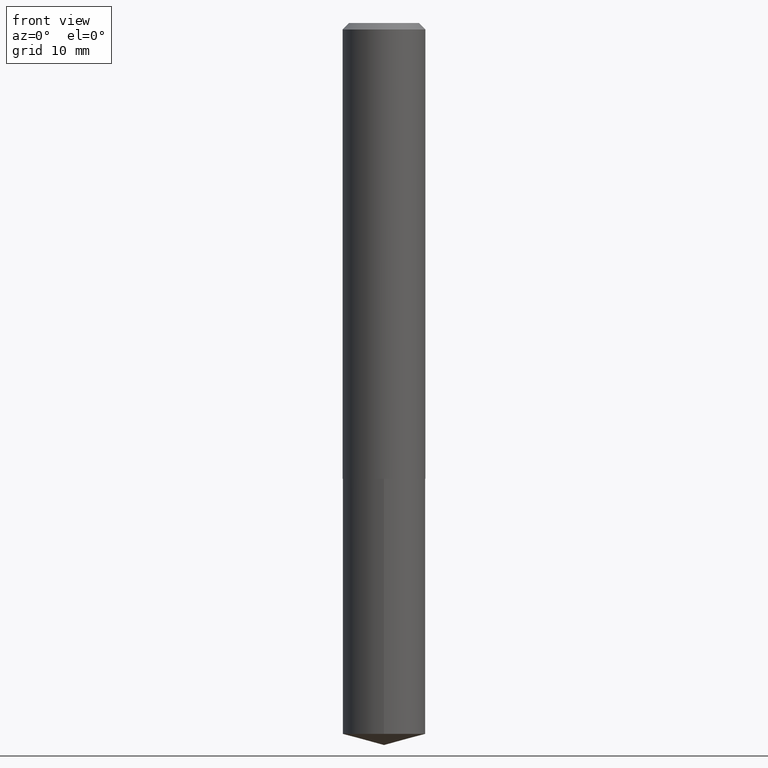
[diagram: clean part render]
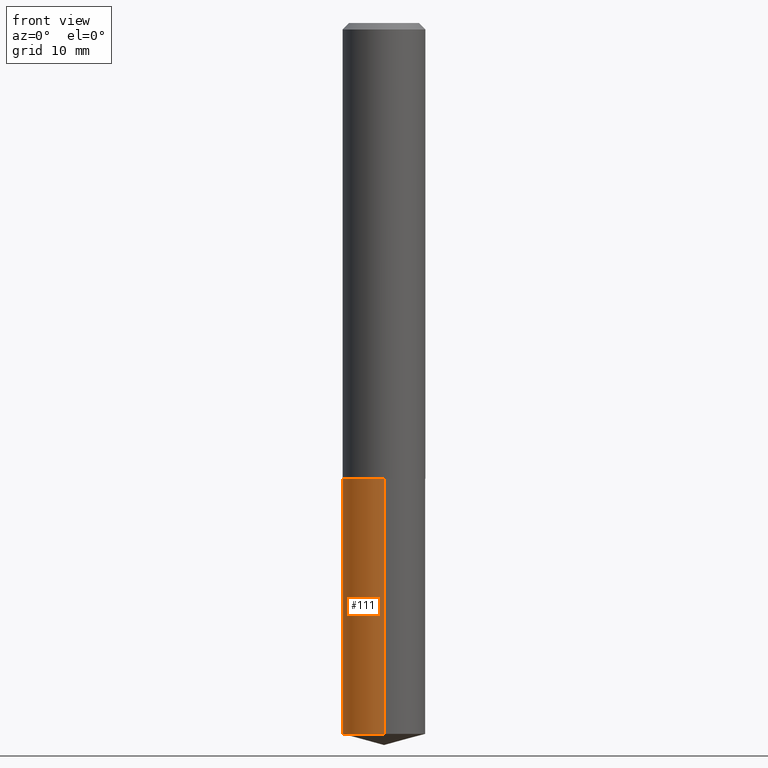
[diagram: same view with one face highlighted and labeled with its STEP entity id]
A machine part, front view. The second image highlights one B-rep face of the part: STEP entity #111.
In plain terms, the highlighted cylindrical surface (partial cylindrical patch) has radius 5.1003 mm, axis along (-0, 0, 1).
Its self-contained STEP definition (entity closure, byte-faithful):
#8 = ORIENTED_EDGE ( 'NONE', *, *, #373, .F. ) ;
#11 = VERTEX_POINT ( 'NONE', #53 ) ;
#13 = DIRECTION ( 'NONE',  ( -2.445182074429976905E-29, 3.491891955036292405E-15, 1.000000000000000000 ) ) ;
#27 = AXIS2_PLACEMENT_3D ( 'NONE', #106, #230, #265 ) ;
#35 = CIRCLE ( 'NONE', #27, 0.2008000000000000063 ) ;
#45 = EDGE_CURVE ( 'NONE', #103, #11, #296, .T. ) ;
#53 = CARTESIAN_POINT ( 'NONE',  ( -1.402178905679348314E-15, -0.2008000000000077223, -2.212599999999998790 ) ) ;
#75 = CARTESIAN_POINT ( 'NONE',  ( -1.402178905679348314E-15, -0.2008000000000077223, -2.212599999999998790 ) ) ;
#79 = DIRECTION ( 'NONE',  ( -2.445182074429977185E-29, 3.491891955036292405E-15, 1.000000000000000000 ) ) ;
#80 = CARTESIAN_POINT ( 'NONE',  ( 5.410844280565231711E-29, -7.725251610324342093E-15, -2.212599999999999678 ) ) ;
#86 = ORIENTED_EDGE ( 'NONE', *, *, #239, .T. ) ;
#102 = DIRECTION ( 'NONE',  ( -6.982962677686266711E-15, -1.000000000000000000, 4.081446205673699815E-15 ) ) ;
#103 = VERTEX_POINT ( 'NONE', #183 ) ;
#106 = CARTESIAN_POINT ( 'NONE',  ( 5.410844280565231711E-29, -7.725251610324342093E-15, -2.212599999999999678 ) ) ;
#111 = ADVANCED_FACE ( 'NONE', ( #383 ), #116, .T. ) ;
#116 = CYLINDRICAL_SURFACE ( 'NONE', #163, 0.2008000000000000063 ) ;
#130 = CARTESIAN_POINT ( 'NONE',  ( 1.426769813406365626E-15, 0.2007999999999922902, -2.212600000000000122 ) ) ;
#140 = ORIENTED_EDGE ( 'NONE', *, *, #142, .F. ) ;
#142 = EDGE_CURVE ( 'NONE', #257, #11, #35, .T. ) ;
#143 = DIRECTION ( 'NONE',  ( -6.982962677686266711E-15, -1.000000000000000000, 2.720964137115799877E-15 ) ) ;
#155 = ORIENTED_EDGE ( 'NONE', *, *, #45, .T. ) ;
#163 = AXIS2_PLACEMENT_3D ( 'NONE', #80, #256, #102 ) ;
#183 = CARTESIAN_POINT ( 'NONE',  ( -1.402178905679318140E-15, -0.2008000000000121354, -3.450095802159831138 ) ) ;
#199 = CARTESIAN_POINT ( 'NONE',  ( 1.426769813406335057E-15, 0.2007999999999922902, -2.212600000000000122 ) ) ;
#218 = VECTOR ( 'NONE', #79, 39.37007874015748143 ) ;
#219 = AXIS2_PLACEMENT_3D ( 'NONE', #362, #13, #143 ) ;
#230 = DIRECTION ( 'NONE',  ( -2.445182074429976905E-29, 3.491891955036292405E-15, 1.000000000000000000 ) ) ;
#237 = EDGE_LOOP ( 'NONE', ( #8, #86, #155, #140 ) ) ;
#239 = EDGE_CURVE ( 'NONE', #339, #103, #388, .T. ) ;
#256 = DIRECTION ( 'NONE',  ( -2.445182074429976905E-29, 3.491891955036292405E-15, 1.000000000000000000 ) ) ;
#257 = VERTEX_POINT ( 'NONE', #130 ) ;
#265 = DIRECTION ( 'NONE',  ( -6.982962677686266711E-15, -1.000000000000000000, 4.081446205673699815E-15 ) ) ;
#283 = DIRECTION ( 'NONE',  ( -2.445182074429977185E-29, 3.491891955036292405E-15, 1.000000000000000000 ) ) ;
#286 = LINE ( 'NONE', #199, #369 ) ;
#296 = LINE ( 'NONE', #75, #218 ) ;
#338 = CARTESIAN_POINT ( 'NONE',  ( 1.426769813406365626E-15, 0.2007999999999879881, -3.450095802159832026 ) ) ;
#339 = VERTEX_POINT ( 'NONE', #338 ) ;
#362 = CARTESIAN_POINT ( 'NONE',  ( 8.436746833188797904E-29, -1.204645324627744205E-14, -3.450095802159831582 ) ) ;
#369 = VECTOR ( 'NONE', #283, 39.37007874015748143 ) ;
#373 = EDGE_CURVE ( 'NONE', #339, #257, #286, .T. ) ;
#383 = FACE_OUTER_BOUND ( 'NONE', #237, .T. ) ;
#388 = CIRCLE ( 'NONE', #219, 0.2008000000000000063 ) ;